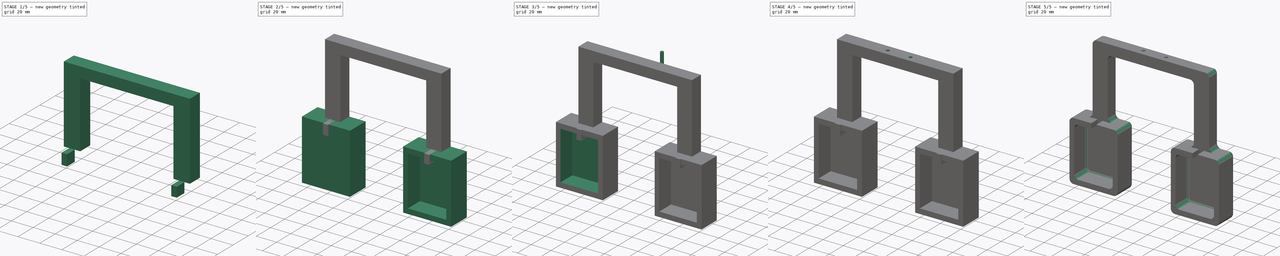
[diagram: build sequence overview — one tinted view per stage of 5, left to right]
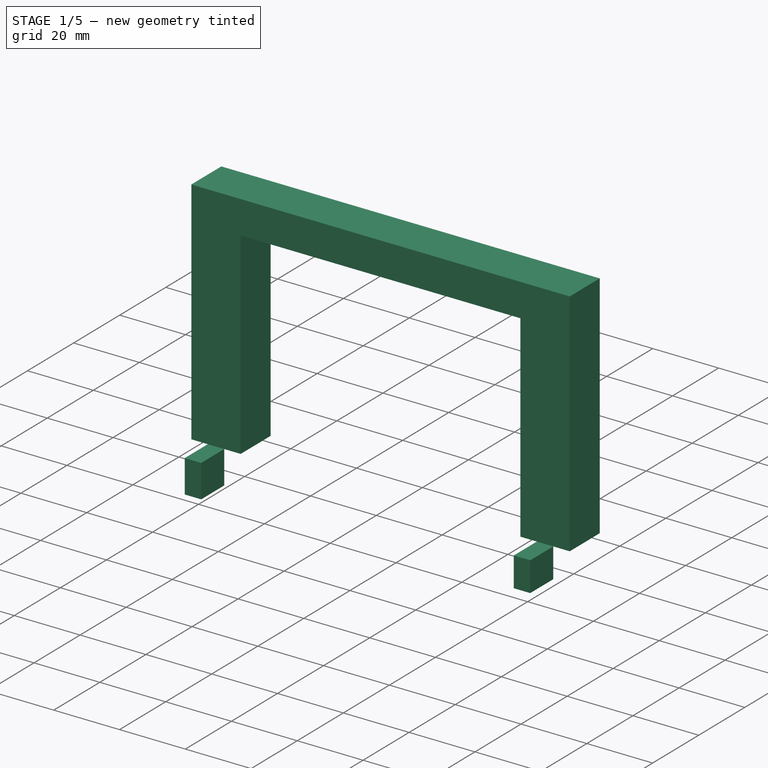
[diagram: stage 1 of 5 — iso view after this stage's code; geometry added in this stage tinted green]
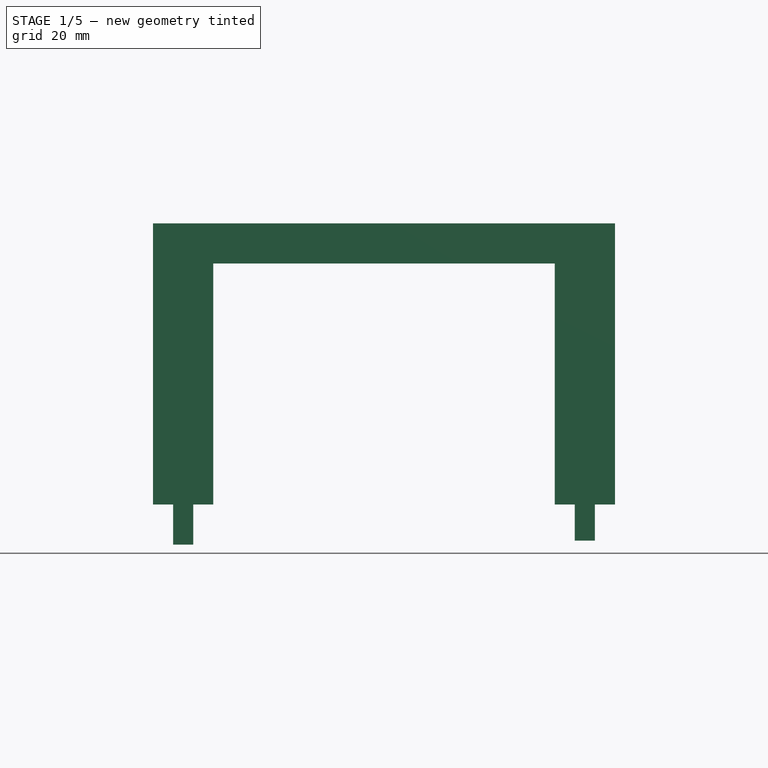
[diagram: stage 1 of 5 — front view after this stage's code; geometry added in this stage tinted green]
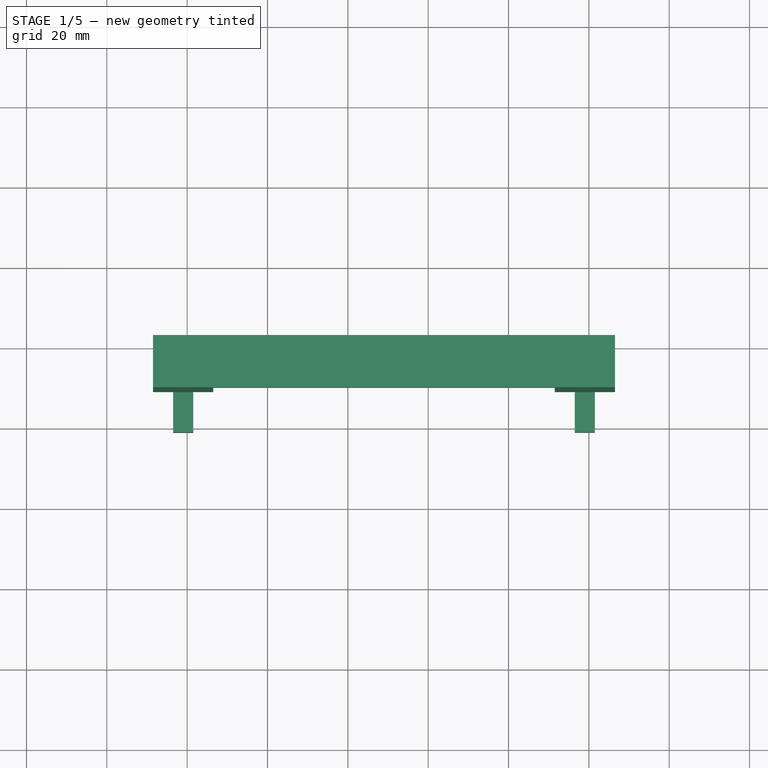
[diagram: stage 1 of 5 — top view after this stage's code; geometry added in this stage tinted green]
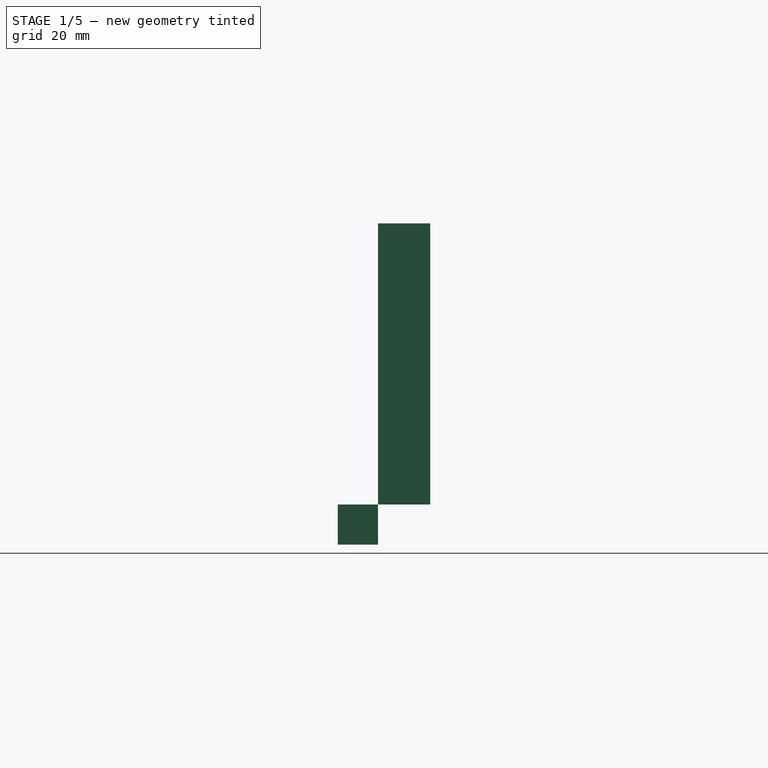
[diagram: stage 1 of 5 — right view after this stage's code; geometry added in this stage tinted green]
FCSTD DOCUMENT  (FreeCAD 1.0R39109 (Git))
Label: GPSHolder
License: All rights reserved
LicenseURL: https://en.wikipedia.org/wiki/All_rights_reserved
objects: Part::Box×7, Part::Cut×4, Part::Cylinder×4, Part::MultiFuse×3, Part::Fillet×3, Sketcher::SketchObject×1, Part::Extrusion×1
note: 24 computed .brp shape members not serialized (recipe doc carries the construction recipe); baked Part::Feature solids carry a one-line shape summary decoded from their .brp

FEATURE [Part::Box] Box009  label="stand1"
  AttacherType = Attacher::AttachEngine3D
  Height = 60
  Length = 15
  Placement = pos=(11.5,9,54) rot=(0,0,1;0rad)
  Width = 13
FEATURE [Part::Box] Box011  label="base"
  AttacherType = Attacher::AttachEngine3D
  Height = 10
  Length = 115
  Placement = pos=(11.5,9,114) rot=(0,0,1;0rad)
  Width = 13
FEATURE [Part::Box] Box012  label="stand002"
  AttacherType = Attacher::AttachEngine3D
  Height = 60
  Length = 15
  Placement = pos=(111.5,9,54) rot=(0,0,1;0rad)
  Width = 13
FEATURE [Sketcher::SketchObject] Sketch001
  ArcFitTolerance = 1e-06
  FullyConstrained = true
  MakeInternals = false
  MapMode = 5
  Placement = pos=(0,-48,0) rot=(1,0,0;1.5708rad)
  sketch-geometry (8):
    g0: LineSegment StartX=16.5 StartY=9 StartZ=0 EndX=16.5 EndY=-1 EndZ=0
    g1: LineSegment StartX=16.5 StartY=-1 StartZ=0 EndX=21.5 EndY=-1 EndZ=0
    g2: LineSegment StartX=21.5 StartY=-1 StartZ=0 EndX=21.5 EndY=9 EndZ=0
    g3: LineSegment StartX=21.5 StartY=9 StartZ=0 EndX=16.5 EndY=9 EndZ=0
    g4: LineSegment StartX=116.5 StartY=9 StartZ=0 EndX=116.5 EndY=0 EndZ=0
    g5: LineSegment StartX=116.5 StartY=0 StartZ=0 EndX=121.5 EndY=0 EndZ=0
    g6: LineSegment StartX=121.5 StartY=0 StartZ=0 EndX=121.5 EndY=9 EndZ=0
    g7: LineSegment StartX=121.5 StartY=9 StartZ=0 EndX=116.5 EndY=9 EndZ=0
  constraints (25):
    c: Coincident(g0,g1)
    c: Coincident(g1,g2)
    c: Coincident(g2,g3)
    c: Coincident(g3,g0)
    c: Vertical(g0)
    c: Vertical(g2)
    c: Horizontal(g1)
    c: Horizontal(g3)
    c: PointOnObject(g1,g-1)
    c: Coincident(g4,g5)
    c: Coincident(g5,g6)
    c: Coincident(g6,g7)
    c: Coincident(g7,g4)
    c: Vertical(g4)
    c: Vertical(g6)
    c: Horizontal(g5)
    c: Horizontal(g7)
    c: PointOnObject(g5,g-1)
    c: DistanceY(g0,g0) = 10
    c: DistanceX(g0) = 16.5
    c: DistanceX(g0,g1) = 5
    c: Horizontal(g4,g2)
    c: DistanceX(g4,g5) = 5
    c: DistanceX(g4) = 116.5
    c: DistanceY(g0) = 9
FEATURE [Part::Extrusion] Extrude
  Base = -> Sketch001
  Dir = (0,-1,2e-16)
  DirMode = 2
  FaceMakerClass = Part::FaceMakerBullseye
  FaceMakerMode = 3
  LengthFwd = 10
  LengthRev = 0
  Placement = pos=(0,57,45) rot=(0,0,1;0rad)
  Solid = true
  Symmetric = false
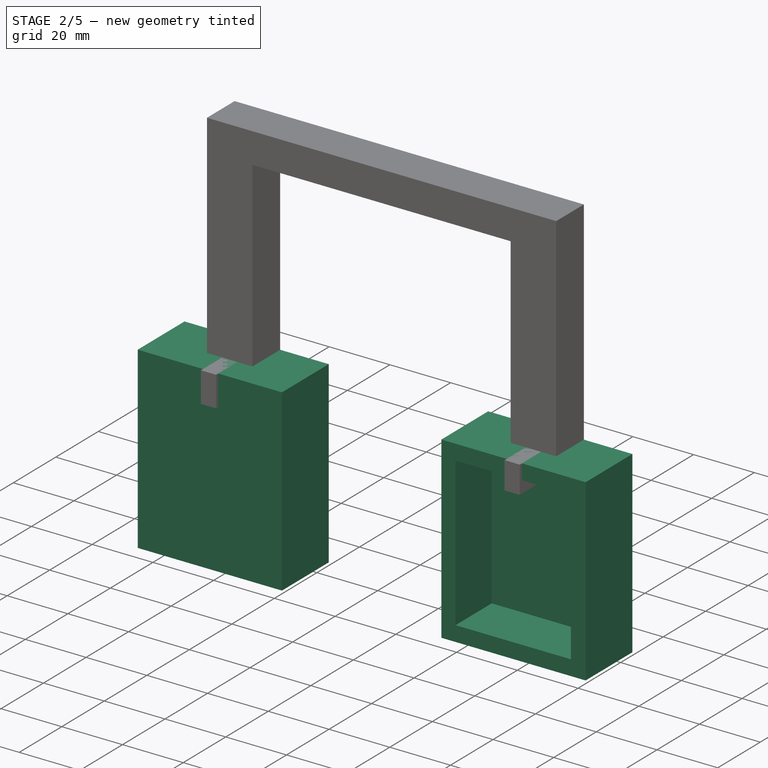
[diagram: stage 2 of 5 — iso view after this stage's code; geometry added in this stage tinted green]
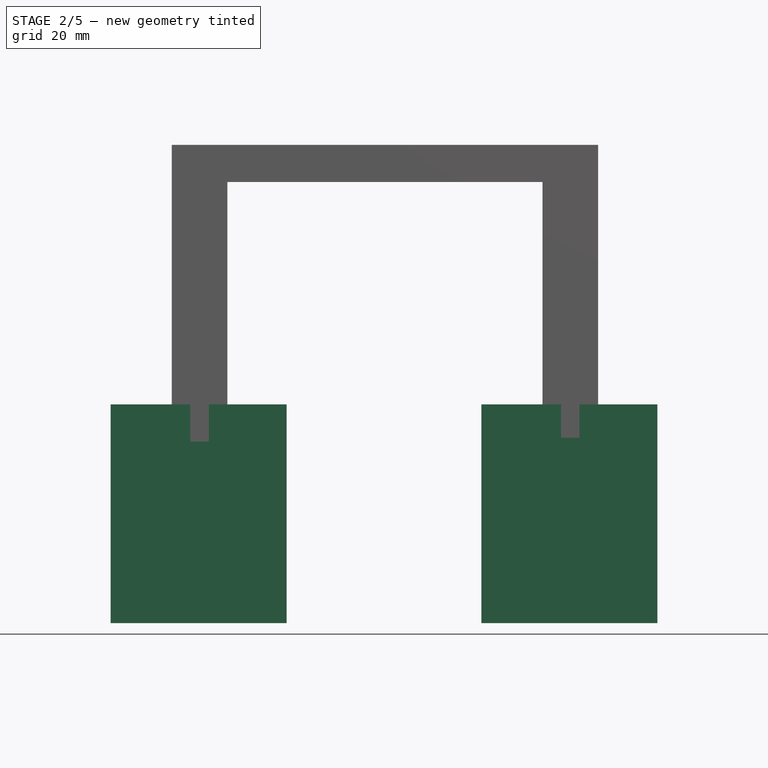
[diagram: stage 2 of 5 — front view after this stage's code; geometry added in this stage tinted green]
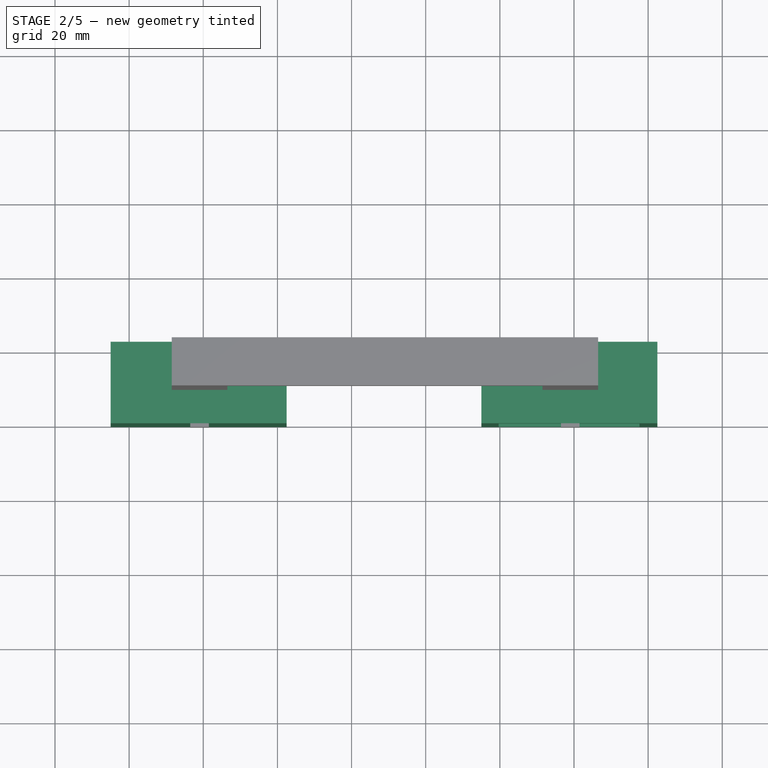
[diagram: stage 2 of 5 — top view after this stage's code; geometry added in this stage tinted green]
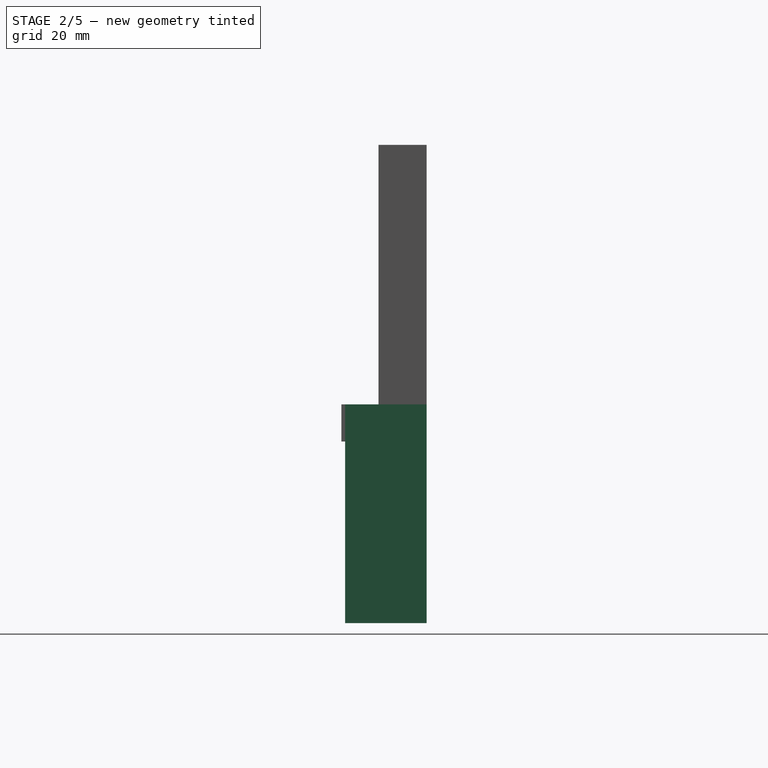
[diagram: stage 2 of 5 — right view after this stage's code; geometry added in this stage tinted green]
FEATURE [Part::Box] Box003  label="Cube003"
  AttacherType = Attacher::AttachEngine3D
  Height = 59
  Length = 47.5
  Placement = pos=(-5,0,-5) rot=(0,0,1;0rad)
  Width = 22
FEATURE [Part::Box] Box013  label="Cube006"
  AttacherType = Attacher::AttachEngine3D
  Height = 49
  Length = 38
  Placement = pos=(-0.34,0,0) rot=(0,0,1;0rad)
  Width = 17
FEATURE [Part::Box] Box014  label="Cube007"
  AttacherType = Attacher::AttachEngine3D
  Height = 59
  Length = 47.5
  Placement = pos=(-5,0,-5) rot=(0,0,1;0rad)
  Width = 22
FEATURE [Part::Cut] Cut002  label="Hollow_CubeBase001"
  Base = -> Box014
  Placement = pos=(100,0,0) rot=(0,0,1;0rad)
  Refine = true
  Tool = -> Box013
FEATURE [Part::MultiFuse] Fusion005  label="baseFusion"
  Refine = true
  Shapes = -> [Box009,Box011,Box012]
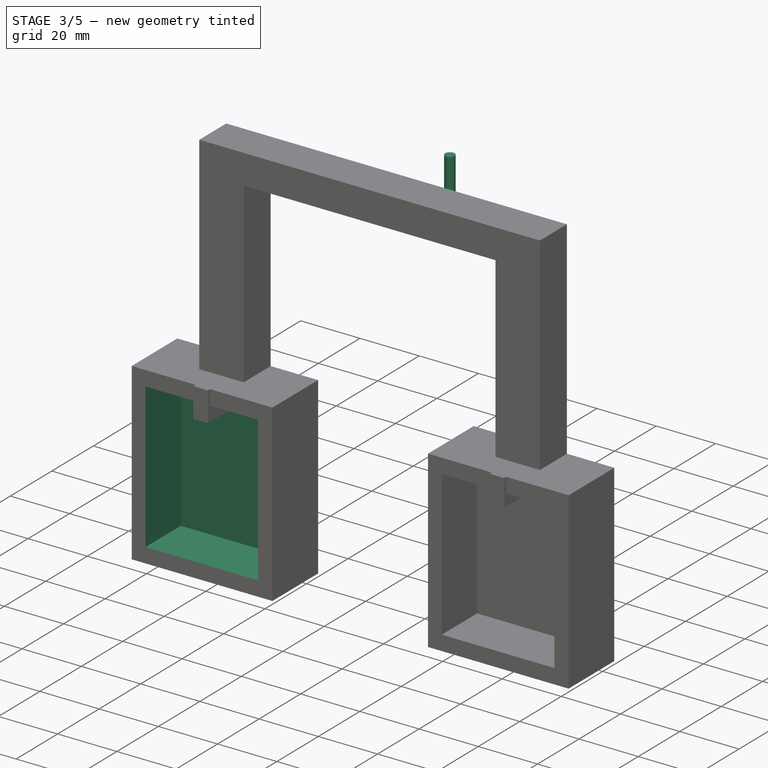
[diagram: stage 3 of 5 — iso view after this stage's code; geometry added in this stage tinted green]
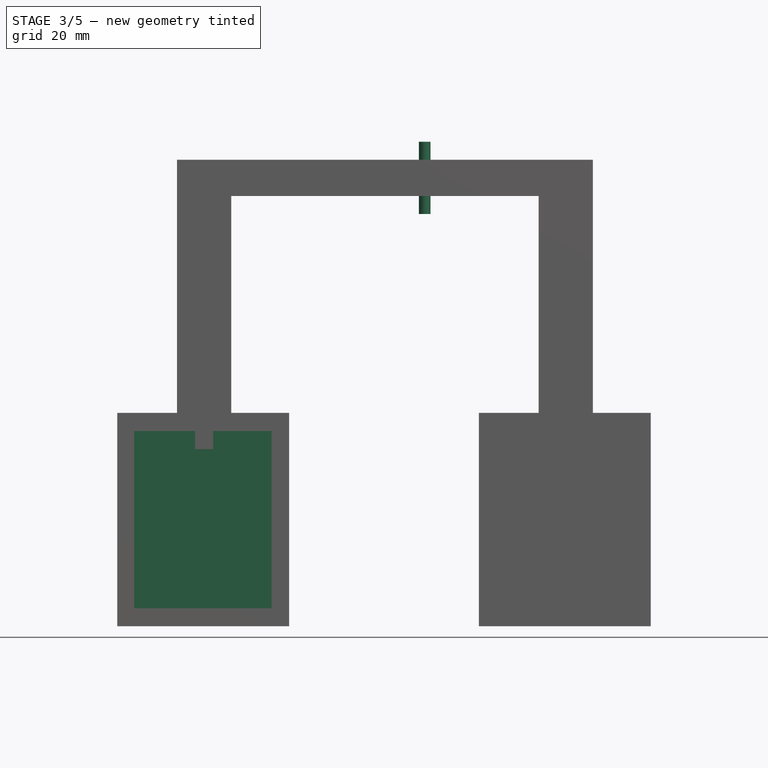
[diagram: stage 3 of 5 — front view after this stage's code; geometry added in this stage tinted green]
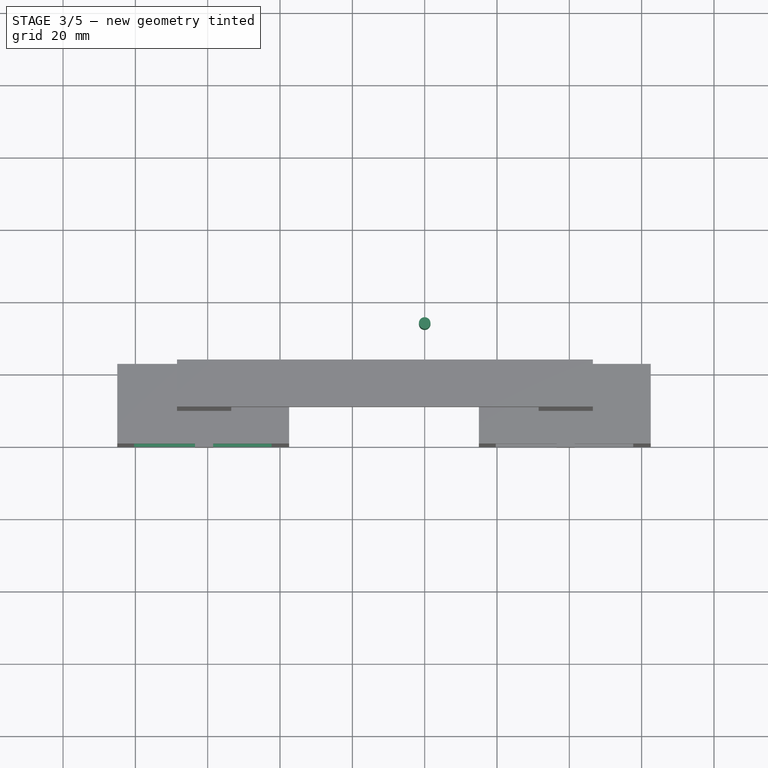
[diagram: stage 3 of 5 — top view after this stage's code; geometry added in this stage tinted green]
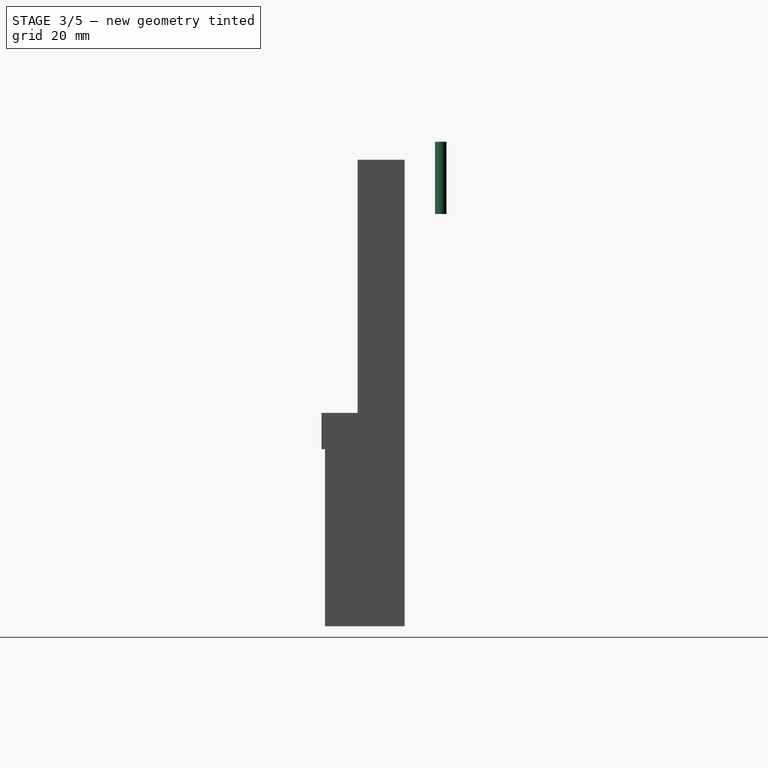
[diagram: stage 3 of 5 — right view after this stage's code; geometry added in this stage tinted green]
FEATURE [Part::Box] Box002  label="Cube002"
  AttacherType = Attacher::AttachEngine3D
  Height = 49
  Length = 38
  Placement = pos=(-0.34,0,0) rot=(0,0,1;0rad)
  Width = 17
FEATURE [Part::Cut] Cut  label="Hollow_CubeBase"
  Base = -> Box003
  Refine = true
  Tool = -> Box002
FEATURE [Part::Cylinder] Cylinder003  label="m3_4"
  Angle = 360
  AttacherType = Attacher::AttachEngine3D
  FirstAngle = 0
  Height = 20
  Placement = pos=(80,32,109) rot=(0,0,1;0rad)
  Radius = 1.6
  SecondAngle = 0
FEATURE [Part::MultiFuse] Fusion  label="gpsHolder"
  Shapes = -> [Fusion005,Cut,Cut002]
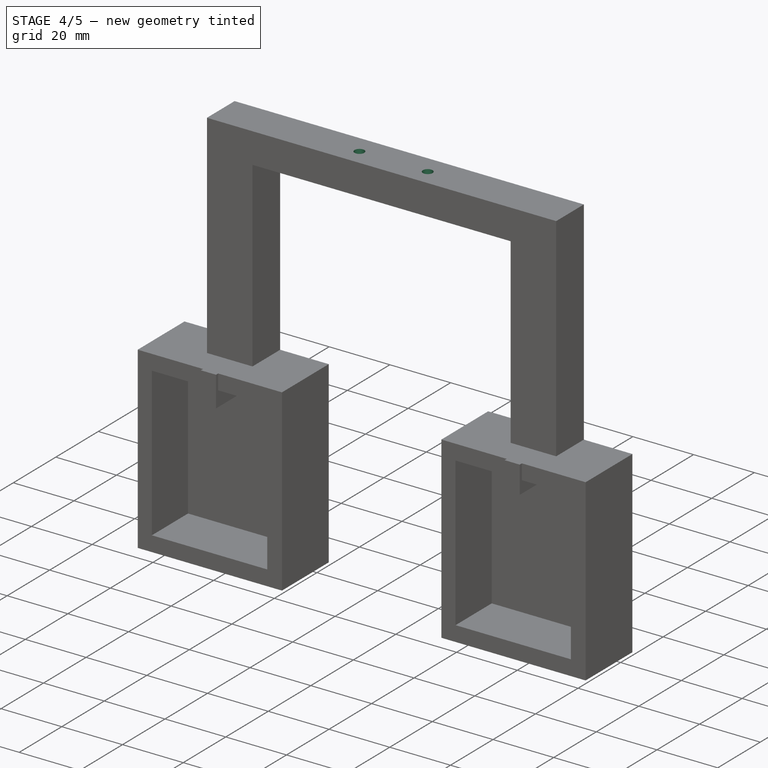
[diagram: stage 4 of 5 — iso view after this stage's code; geometry added in this stage tinted green]
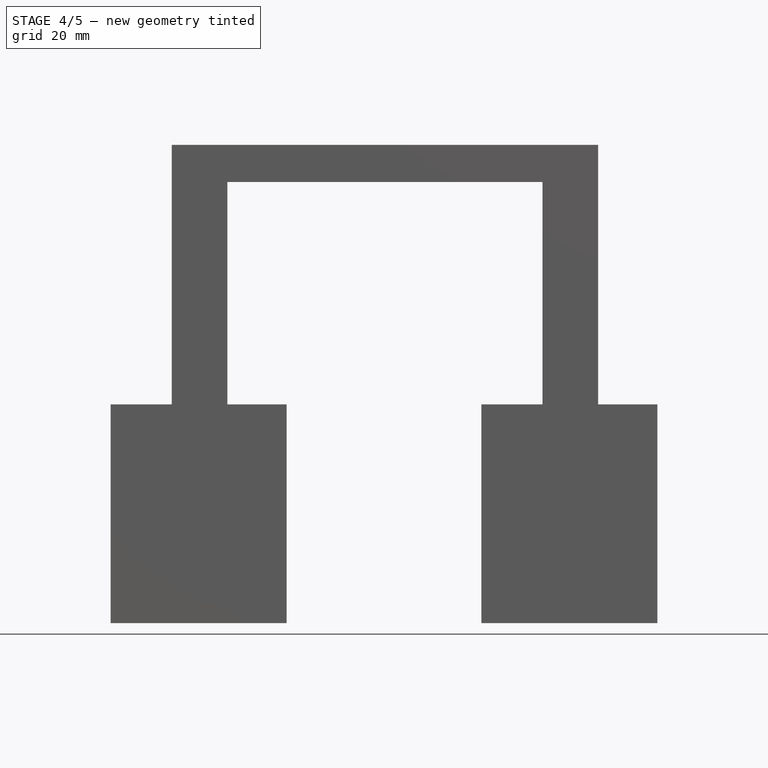
[diagram: stage 4 of 5 — front view after this stage's code; geometry added in this stage tinted green]
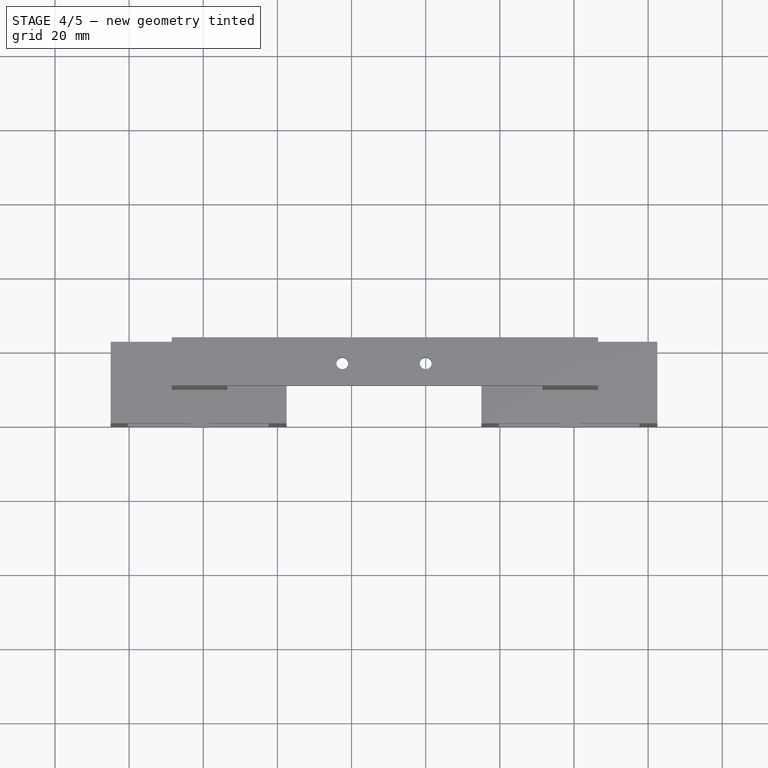
[diagram: stage 4 of 5 — top view after this stage's code; geometry added in this stage tinted green]
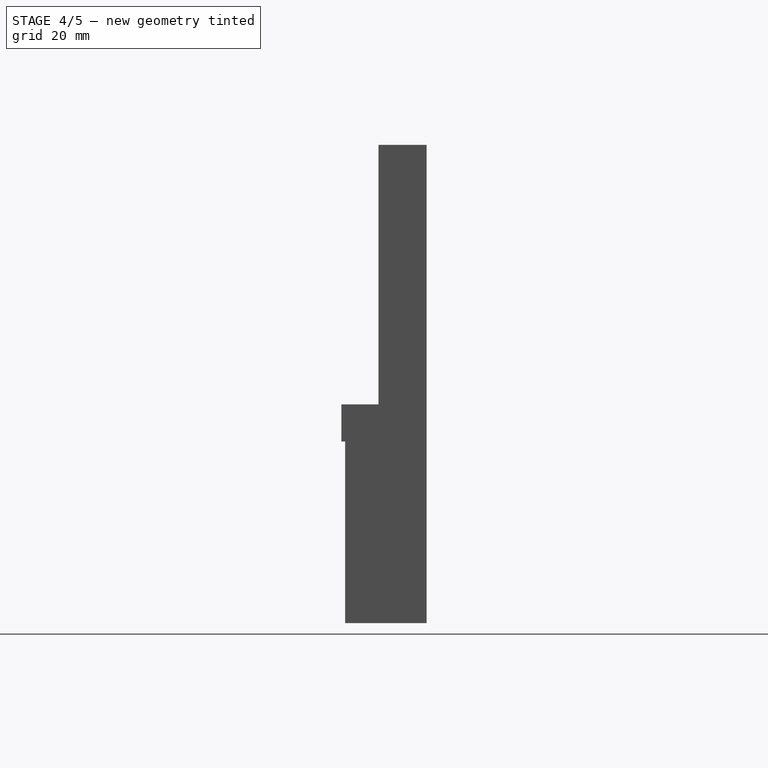
[diagram: stage 4 of 5 — right view after this stage's code; geometry added in this stage tinted green]
FEATURE [Part::Cylinder] Cylinder  label="m3_1"
  Angle = 360
  AttacherType = Attacher::AttachEngine3D
  FirstAngle = 0
  Height = 20
  Placement = pos=(57.5,15,109) rot=(0,0,1;0rad)
  Radius = 1.6
  SecondAngle = 0
FEATURE [Part::Cylinder] Cylinder001  label="m3_2"
  Angle = 360
  AttacherType = Attacher::AttachEngine3D
  FirstAngle = 0
  Height = 20
  Placement = pos=(80,15,109) rot=(0,0,1;0rad)
  Radius = 1.6
  SecondAngle = 0
FEATURE [Part::Cylinder] Cylinder002  label="m3_3"
  Angle = 360
  AttacherType = Attacher::AttachEngine3D
  FirstAngle = 0
  Height = 20
  Placement = pos=(57.5,32,109) rot=(0,0,1;0rad)
  Radius = 1.6
  SecondAngle = 0
FEATURE [Part::MultiFuse] Fusion004  label="m3_cyl"
  Refine = true
  Shapes = -> [Cylinder,Cylinder001,Cylinder002,Cylinder003]
FEATURE [Part::Cut] Cut007  label="gpsHolder001"
  Base = -> Fusion
  Tool = -> Fusion004
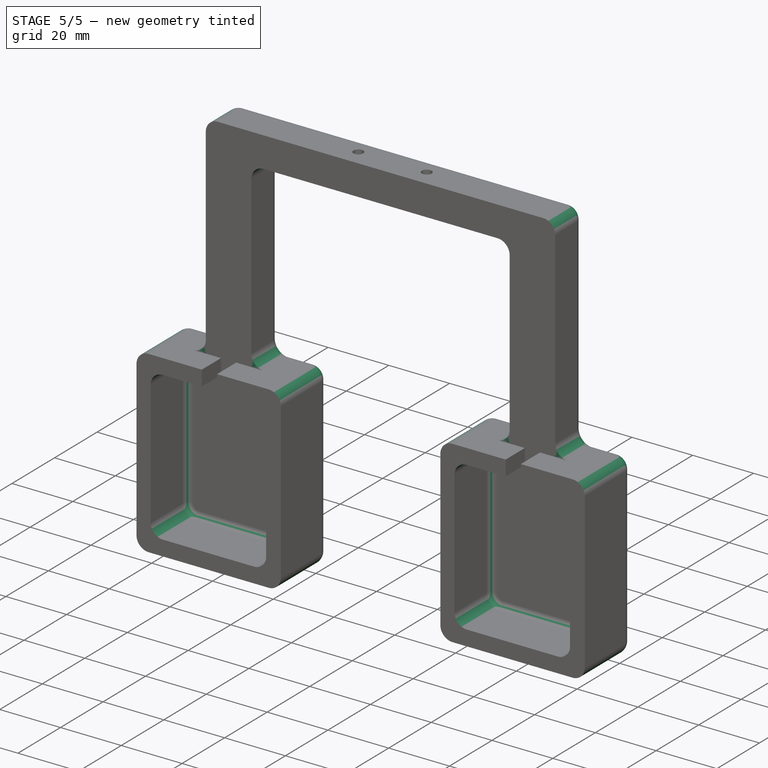
[diagram: stage 5 of 5 — iso view after this stage's code; geometry added in this stage tinted green]
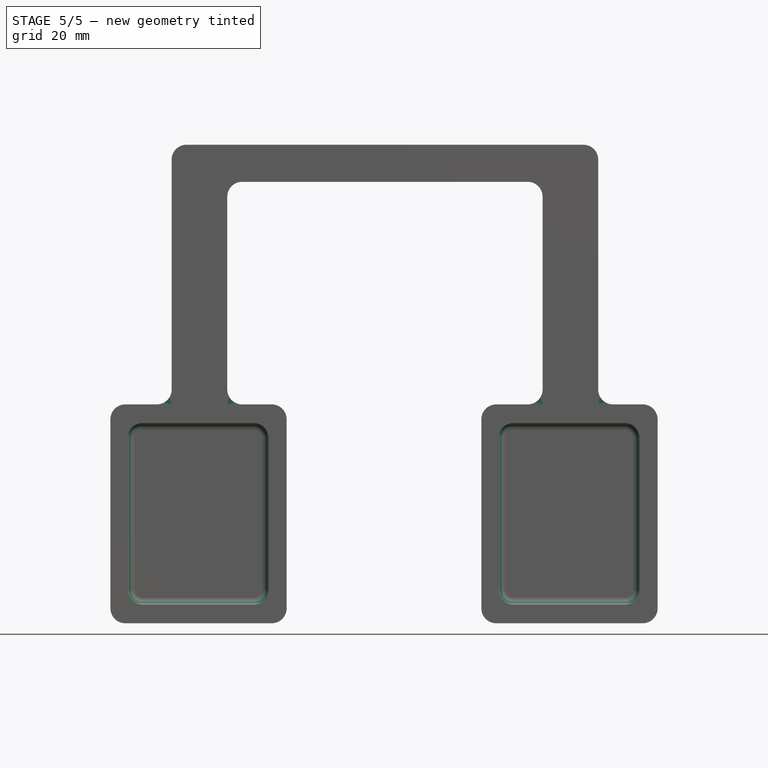
[diagram: stage 5 of 5 — front view after this stage's code; geometry added in this stage tinted green]
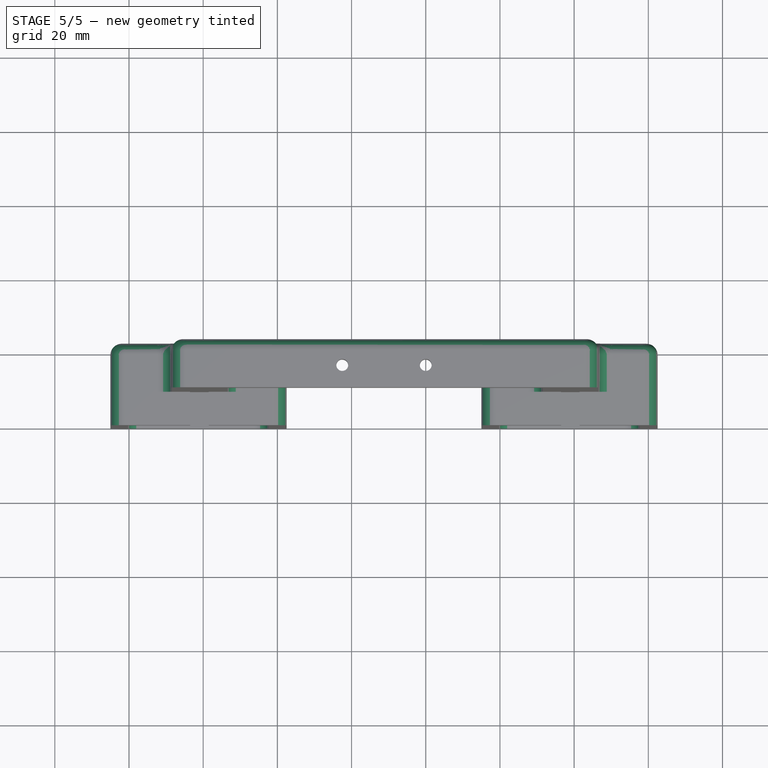
[diagram: stage 5 of 5 — top view after this stage's code; geometry added in this stage tinted green]
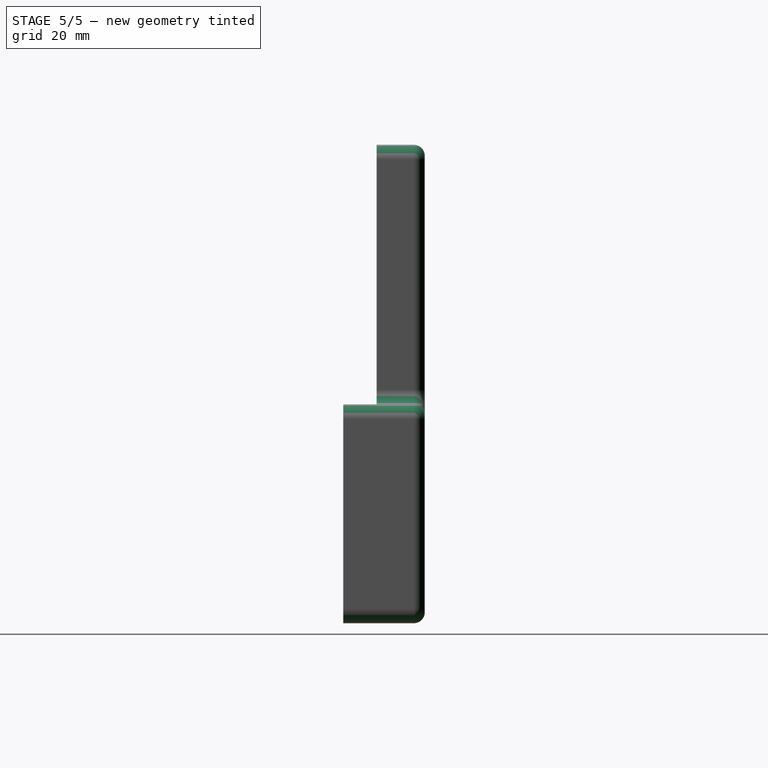
[diagram: stage 5 of 5 — right view after this stage's code; geometry added in this stage tinted green]
FEATURE [Part::Cut] Cut011  label="gpsHolder004"
  Base = -> Cut007
  Tool = -> Extrude
FEATURE [Part::Fillet] Fillet
  Base = -> Cut011
  EdgeLinks = -> Cut011 [Edge1,Edge4,Edge9,Edge26,Edge34,Edge44,Edge45,Edge46,Edge47,Edge52,Edge56,Edge61,Edge74,Edge75,Edge76,Edge77,Edge81,Edge83,Edge93,Edge95,Edge98,Edge99,Edge103,Edge104]
  Edges = 24 edges r=4: [Edge1,Edge4,Edge9,Edge26,Edge34,Edge44,Edge45,Edge46,Edge47,Edge52,Edge56,Edge61,Edge74,Edge75,Edge76,Edge77,Edge81,Edge83,Edge93,Edge95,Edge98,Edge99,Edge103,Edge104]
FEATURE [Part::Fillet] Fillet001
  Base = -> Fillet
  EdgeLinks = -> Fillet [Edge142,Edge157,Edge162,Edge164,Edge166,Edge167,Edge170,Edge172,Edge173,Edge175,Edge177,Edge179,Edge180,Edge183,Edge185,Edge186]
  Edges = 16 edges r=2: [Edge142,Edge157,Edge162,Edge164,Edge166,Edge167,Edge170,Edge172,Edge173,Edge175,Edge177,Edge179,Edge180,Edge183,Edge185,Edge186]
FEATURE [Part::Fillet] Fillet002  label="gpsHolder005"
  Base = -> Fillet001
  EdgeLinks = -> Fillet001 [Edge52,Edge54,Edge56,Edge57,Edge59,Edge64,Edge66,Edge68,Edge69,Edge103,Edge104,Edge105,Edge124,Edge135,Edge149,Edge150,Edge151,Edge154,Edge155,Edge156,Edge157,Edge158,Edge159,Edge160]
  Edges = 24 edges r=3: [Edge52,Edge54,Edge56,Edge57,Edge59,Edge64,Edge66,Edge68,Edge69,Edge103,Edge104,Edge105,Edge124,Edge135,Edge149,Edge150,Edge151,Edge154,Edge155,Edge156,Edge157,Edge158,Edge159,Edge160]
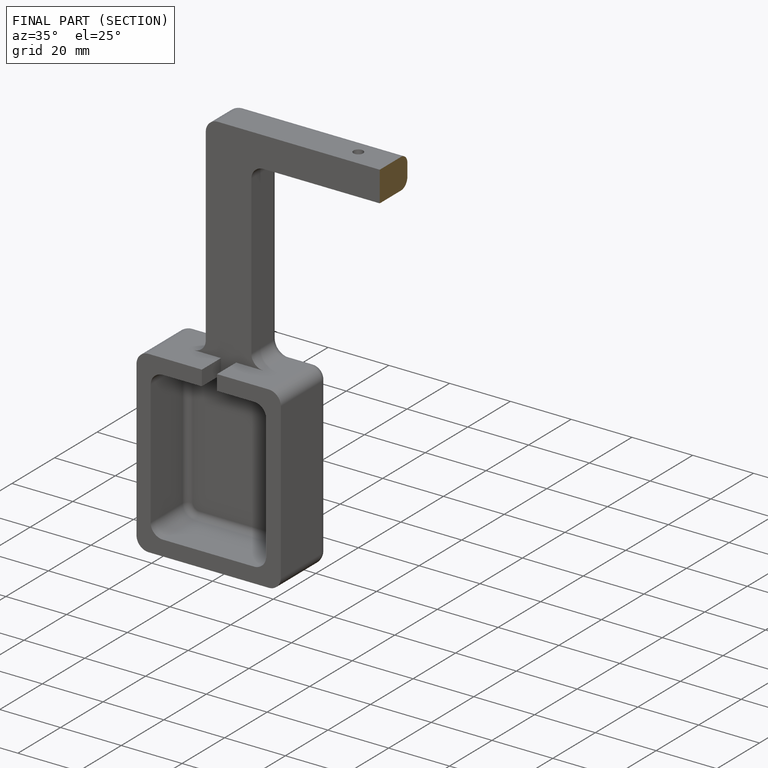
[diagram: finished part — half-section view (interior)]
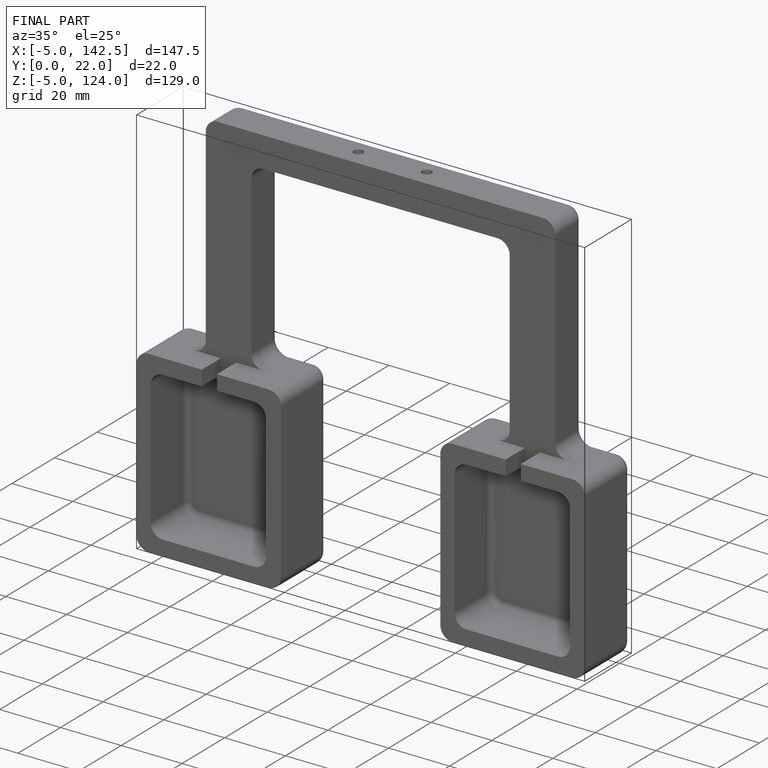
[diagram: finished part — iso view with bounding-box wireframe]
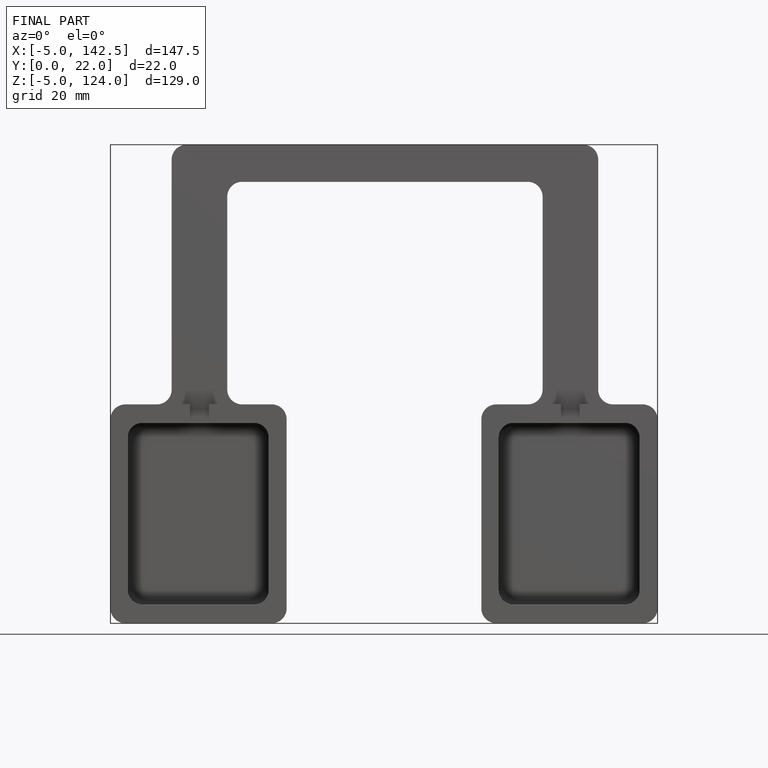
[diagram: finished part — front view with bounding-box wireframe]
